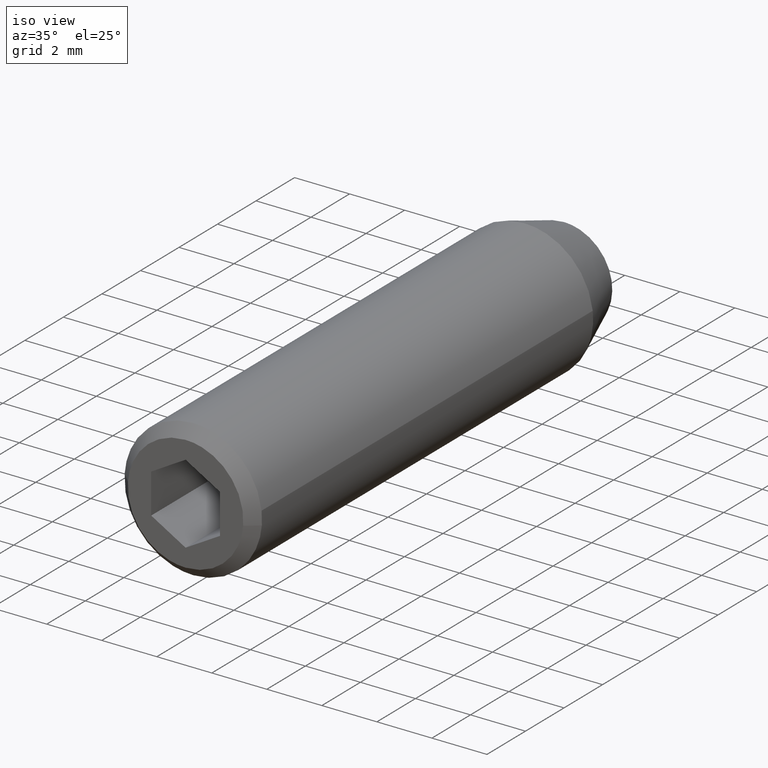
[diagram: clean part render]
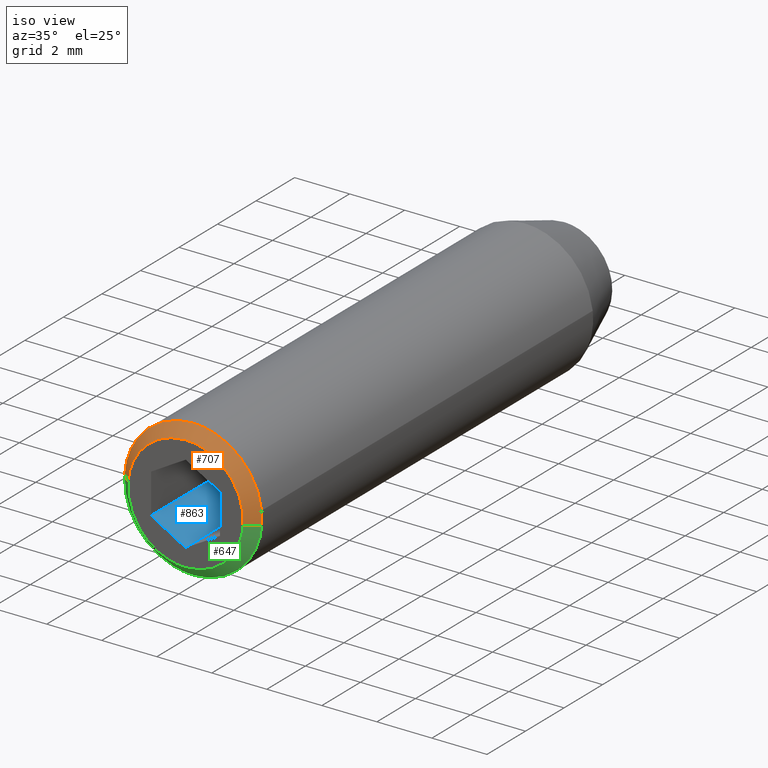
[diagram: same view with three faces highlighted in distinct colors, each labeled with its STEP entity id]
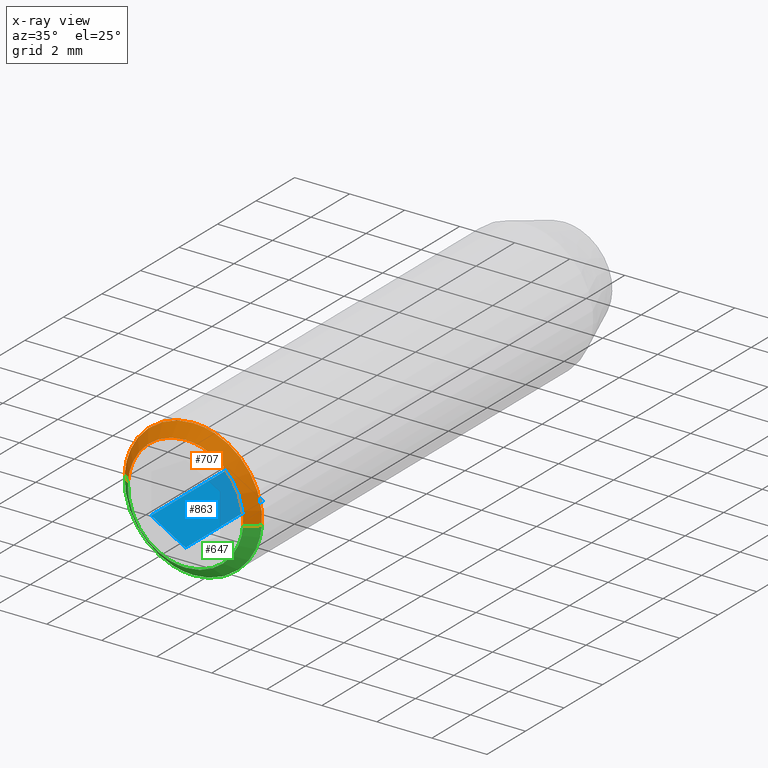
[diagram: x-ray of the same camera — body ghosted, the three highlighted faces saturated]
A machine part, iso view with three faces highlighted in distinct colors.
The next image is the same camera in x-ray (body ghosted, the three faces saturated) — at least one of them is partly hidden behind the body in this view.
Their STEP definitions:

[orange] entity #707 — the highlighted face is a freeform B-spline surface patch.
#453=CARTESIAN_POINT('',(2.483672983576886,-19.250000000000000,0.285251661958853));
#454=VERTEX_POINT('',#453);
#455=CARTESIAN_POINT('',(0.0,-19.250000000000000,2.500000000000000));
#456=VERTEX_POINT('',#455);
#457=CARTESIAN_POINT('',(2.483672983576886,-19.250000000000004,0.285251661958853));
#458=CARTESIAN_POINT('',(2.229307514102217,-19.249999999999993,2.499999999999999));
#459=CARTESIAN_POINT('',(0.0,-19.250000000000000,2.500000000000000));
#467=(BOUNDED_CURVE()B_SPLINE_CURVE(2,(#457,#458,#459),.UNSPECIFIED.,.F.,.U.)B_SPLINE_CURVE_WITH_KNOTS((3,3),(0.269767755891321,0.500000000000000),.UNSPECIFIED.)CURVE()GEOMETRIC_REPRESENTATION_ITEM()RATIONAL_B_SPLINE_CURVE((0.957343736431644,0.730266147793458,1.0))REPRESENTATION_ITEM(''));
#468=EDGE_CURVE('',#454,#456,#467,.T.);
#477=CARTESIAN_POINT('',(-2.493815165195101,-19.249999999996600,0.174384544104496));
#478=VERTEX_POINT('',#477);
#484=CARTESIAN_POINT('',(0.0,-19.250000000000000,2.500000000000000));
#485=CARTESIAN_POINT('',(-2.331240235093511,-19.249999999998305,2.499996679859113));
#486=CARTESIAN_POINT('',(-2.493815165195101,-19.249999999996597,0.174384544104496));
#494=(BOUNDED_CURVE()B_SPLINE_CURVE(2,(#484,#485,#486),.UNSPECIFIED.,.F.,.U.)B_SPLINE_CURVE_WITH_KNOTS((3,3),(0.500000000000000,0.737829682995177),.UNSPECIFIED.)CURVE()GEOMETRIC_REPRESENTATION_ITEM()RATIONAL_B_SPLINE_CURVE((1.0,0.721365194472639,0.972871408705238))REPRESENTATION_ITEM(''));
#495=EDGE_CURVE('',#456,#478,#494,.T.);
#526=CARTESIAN_POINT('',(2.492293334335535,-19.249999999993200,-0.196147739371851));
#527=VERTEX_POINT('',#526);
#528=CARTESIAN_POINT('',(2.492293334335535,-19.249999999993197,-0.196147739371851));
#529=CARTESIAN_POINT('',(2.500000000000000,-19.250000000000004,-0.098225267571118));
#530=CARTESIAN_POINT('',(2.500000000000000,-19.250000000000000,-5.143347E-016));
#531=CARTESIAN_POINT('',(2.500000000000000,-19.250000000000000,0.143093087672248));
#532=CARTESIAN_POINT('',(2.483672983576886,-19.249999999999993,0.285251661958853));
#540=(BOUNDED_CURVE()B_SPLINE_CURVE(2,(#528,#529,#530,#531,#532),.UNSPECIFIED.,.F.,.U.)B_SPLINE_CURVE_WITH_KNOTS((3,2,3),(0.236331300625654,0.250000000000000,0.269767755891321),.UNSPECIFIED.)CURVE()GEOMETRIC_REPRESENTATION_ITEM()RATIONAL_B_SPLINE_CURVE((0.969723356156972,0.983986122573018,1.0,0.976840633393090,0.957343736431644))REPRESENTATION_ITEM(''));
#541=EDGE_CURVE('',#527,#454,#540,.T.);
#600=CARTESIAN_POINT('',(2.093526400839647,-19.649999999999810,-0.164764101029995));
#601=VERTEX_POINT('',#600);
#602=CARTESIAN_POINT('',(2.093526400839647,-19.649999999999810,-0.164764101029995));
#603=CARTESIAN_POINT('',(2.492293334335535,-19.249999999993200,-0.196147739371851));
#604=QUASI_UNIFORM_CURVE('',1,(#602,#603),.UNSPECIFIED.,.F.,.U.);
#605=EDGE_CURVE('',#601,#527,#604,.T.);
#622=CARTESIAN_POINT('',(-2.093526400839646,-19.649999999999810,0.164764101029993));
#623=VERTEX_POINT('',#622);
#639=CARTESIAN_POINT('',(-2.093526400839646,-19.649999999999810,0.164764101029993));
#640=CARTESIAN_POINT('',(-2.493815165195101,-19.249999999996600,0.174384544104496));
#641=QUASI_UNIFORM_CURVE('',1,(#639,#640),.UNSPECIFIED.,.F.,.U.);
#642=EDGE_CURVE('',#623,#478,#641,.T.);
#648=CARTESIAN_POINT('',(-2.087279053478178,-19.660000000000011,0.116689227228448));
#649=CARTESIAN_POINT('',(-2.085426929362565,-19.660000000000007,0.140222695438218));
#650=CARTESIAN_POINT('',(-1.919577717431037,-19.660000000000007,2.247536737573431));
#651=CARTESIAN_POINT('',(0.163979510071197,-19.660000000000011,2.083557227502234));
#652=CARTESIAN_POINT('',(2.247536737573431,-19.660000000000007,1.919577717431037));
#653=CARTESIAN_POINT('',(2.082397546963724,-19.660000000000007,-0.178714648422078));
#654=CARTESIAN_POINT('',(2.081244640829600,-19.660000000000011,-0.193363709803842));
#655=CARTESIAN_POINT('',(-2.506981934925175,-19.239750000000004,0.140152695047948));
#656=CARTESIAN_POINT('',(-2.504757392072918,-19.239749999999994,0.168418191973105));
#657=CARTESIAN_POINT('',(-2.305559791952765,-19.239750000000004,2.699463682054415));
#658=CARTESIAN_POINT('',(0.196951945050825,-19.239750000000001,2.502511737003589));
#659=CARTESIAN_POINT('',(2.699463682054415,-19.239750000000004,2.305559791952765));
#660=CARTESIAN_POINT('',(2.501118871897467,-19.239749999999997,-0.214649974259102));
#661=CARTESIAN_POINT('',(2.499734143369628,-19.239750000000004,-0.232244618437845));
#669=(BOUNDED_SURFACE()B_SPLINE_SURFACE(2,1,((#648,#655),(#649,#656),(#650,#657),(#651,#658),(#652,#659),(#653,#660),(#654,#661)),.UNSPECIFIED.,.F.,.F.,.U.)B_SPLINE_SURFACE_WITH_KNOTS((3,1,2,1,3),(2,2),(0.0,0.067383728164919,4.226502107953176,8.385620487741434,8.427339991789015),(0.0,1.0),.UNSPECIFIED.)GEOMETRIC_REPRESENTATION_ITEM()RATIONAL_B_SPLINE_SURFACE(((1.009490586819449,1.009490586819449),(1.004745293409725,1.004745293409725),(0.707106781186548,0.707106781186548),(1.0,1.0),(0.707106781186548,0.707106781186548),(1.002937968750103,1.002937968750103),(1.005875937500206,1.005875937500206)))REPRESENTATION_ITEM('')SURFACE());
#670=ORIENTED_EDGE('',*,*,#541,.T.);
#671=ORIENTED_EDGE('',*,*,#468,.T.);
#672=ORIENTED_EDGE('',*,*,#495,.T.);
#673=ORIENTED_EDGE('',*,*,#642,.F.);
#674=CARTESIAN_POINT('',(0.0,-19.649999999999999,2.100000000000000));
#675=VERTEX_POINT('',#674);
#676=CARTESIAN_POINT('',(0.0,-19.649999999999999,2.100000000000000));
#677=CARTESIAN_POINT('',(-1.941220032479427,-19.650000000000002,2.099999999999999));
#678=CARTESIAN_POINT('',(-2.093526400839646,-19.649999999999810,0.164764101029993));
#686=(BOUNDED_CURVE()B_SPLINE_CURVE(2,(#676,#677,#678),.UNSPECIFIED.,.F.,.U.)B_SPLINE_CURVE_WITH_KNOTS((3,3),(0.500000000000000,0.736331300632520),.UNSPECIFIED.)CURVE()GEOMETRIC_REPRESENTATION_ITEM()RATIONAL_B_SPLINE_CURVE((1.0,0.723120658605486,0.969723356171299))REPRESENTATION_ITEM(''));
#687=EDGE_CURVE('',#675,#623,#686,.T.);
#688=ORIENTED_EDGE('',*,*,#687,.F.);
#689=CARTESIAN_POINT('',(2.093526400839646,-19.649999999999810,-0.164764101029995));
#690=CARTESIAN_POINT('',(2.100000000000000,-19.650000000000006,-0.082509224717618));
#691=CARTESIAN_POINT('',(2.100000000000000,-19.649999999999999,-5.143347E-016));
#692=CARTESIAN_POINT('',(2.100000000000000,-19.649999999999999,2.100000000000000));
#693=CARTESIAN_POINT('',(0.0,-19.649999999999999,2.100000000000000));
#701=(BOUNDED_CURVE()B_SPLINE_CURVE(2,(#689,#690,#691,#692,#693),.UNSPECIFIED.,.F.,.U.)B_SPLINE_CURVE_WITH_KNOTS((3,2,3),(0.236331300632521,0.250000000000000,0.500000000000000),.UNSPECIFIED.)CURVE()GEOMETRIC_REPRESENTATION_ITEM()RATIONAL_B_SPLINE_CURVE((0.969723356171301,0.983986122581062,1.0,0.707106781186548,1.0))REPRESENTATION_ITEM(''));
#702=EDGE_CURVE('',#601,#675,#701,.T.);
#703=ORIENTED_EDGE('',*,*,#702,.F.);
#704=ORIENTED_EDGE('',*,*,#605,.T.);
#705=EDGE_LOOP('',(#670,#671,#672,#673,#688,#703,#704));
#706=FACE_OUTER_BOUND('',#705,.T.);
#707=ADVANCED_FACE('',(#706),#669,.T.);

[blue] entity #863 — the highlighted face is a freeform B-spline surface patch.
#734=CARTESIAN_POINT('',(-1.250000000000000,-15.650000000000000,-0.721688000000000));
#735=VERTEX_POINT('',#734);
#741=CARTESIAN_POINT('',(0.0,-15.650000000000000,-1.443376000000000));
#742=VERTEX_POINT('',#741);
#743=CARTESIAN_POINT('',(-1.250000000000000,-15.650000000000000,-0.721688000000000));
#744=CARTESIAN_POINT('',(0.0,-15.650000000000000,-1.443376000000000));
#745=QUASI_UNIFORM_CURVE('',1,(#743,#744),.UNSPECIFIED.,.F.,.U.);
#746=EDGE_CURVE('',#735,#742,#745,.T.);
#825=CARTESIAN_POINT('',(0.0,-19.649999999999999,-1.443376000000000));
#826=VERTEX_POINT('',#825);
#834=CARTESIAN_POINT('',(0.0,-15.650000000000000,-1.443376000000000));
#835=CARTESIAN_POINT('',(0.0,-19.649999999999999,-1.443376000000000));
#836=QUASI_UNIFORM_CURVE('',1,(#834,#835),.UNSPECIFIED.,.F.,.U.);
#837=EDGE_CURVE('',#742,#826,#836,.T.);
#842=CARTESIAN_POINT('',(0.062437474109046,-19.849799631046661,-1.479424300651847));
#843=CARTESIAN_POINT('',(-1.312437529988401,-19.849799631046661,-0.685639667086185));
#844=CARTESIAN_POINT('',(0.062437474109046,-15.450199617934819,-1.479424300651847));
#845=CARTESIAN_POINT('',(-1.312437529988401,-15.450199617934819,-0.685639667086185));
#846=B_SPLINE_SURFACE_WITH_KNOTS('',1,1,((#842,#844),(#843,#845)),.UNSPECIFIED.,.F.,.F.,.U.,(2,2),(2,2),(0.041708350593969,0.958291686658934),(0.0,4.399600013111835),.UNSPECIFIED.);
#847=CARTESIAN_POINT('',(-1.250000000000000,-19.649999999999999,-0.721688000000000));
#848=VERTEX_POINT('',#847);
#849=CARTESIAN_POINT('',(-1.250000000000000,-19.649999999999999,-0.721688000000000));
#850=CARTESIAN_POINT('',(0.0,-19.649999999999999,-1.443376000000000));
#851=QUASI_UNIFORM_CURVE('',1,(#849,#850),.UNSPECIFIED.,.F.,.U.);
#852=EDGE_CURVE('',#848,#826,#851,.T.);
#853=ORIENTED_EDGE('',*,*,#852,.T.);
#854=ORIENTED_EDGE('',*,*,#837,.F.);
#855=ORIENTED_EDGE('',*,*,#746,.F.);
#856=CARTESIAN_POINT('',(-1.250000000000000,-15.650000000000000,-0.721688000000000));
#857=CARTESIAN_POINT('',(-1.250000000000000,-19.649999999999999,-0.721688000000000));
#858=QUASI_UNIFORM_CURVE('',1,(#856,#857),.UNSPECIFIED.,.F.,.U.);
#859=EDGE_CURVE('',#735,#848,#858,.T.);
#860=ORIENTED_EDGE('',*,*,#859,.T.);
#861=EDGE_LOOP('',(#853,#854,#855,#860));
#862=FACE_OUTER_BOUND('',#861,.T.);
#863=ADVANCED_FACE('',(#862),#846,.F.);

[green] entity #647 — the highlighted face is a freeform B-spline surface patch.
#477=CARTESIAN_POINT('',(-2.493815165195101,-19.249999999996600,0.174384544104496));
#478=VERTEX_POINT('',#477);
#526=CARTESIAN_POINT('',(2.492293334335535,-19.249999999993200,-0.196147739371851));
#527=VERTEX_POINT('',#526);
#543=CARTESIAN_POINT('',(0.0,-19.250000000000000,-2.500000000000000));
#544=VERTEX_POINT('',#543);
#545=CARTESIAN_POINT('',(0.0,-19.250000000000000,-2.500000000000000));
#546=CARTESIAN_POINT('',(2.310976229049340,-19.249999999999996,-2.500000000000000));
#547=CARTESIAN_POINT('',(2.492293334335536,-19.249999999993193,-0.196147739371851));
#555=(BOUNDED_CURVE()B_SPLINE_CURVE(2,(#545,#546,#547),.UNSPECIFIED.,.F.,.U.)B_SPLINE_CURVE_WITH_KNOTS((3,3),(0.0,0.236331300625654),.UNSPECIFIED.)CURVE()GEOMETRIC_REPRESENTATION_ITEM()RATIONAL_B_SPLINE_CURVE((1.0,0.723120658613529,0.969723356156972))REPRESENTATION_ITEM(''));
#556=EDGE_CURVE('',#544,#527,#555,.T.);
#558=CARTESIAN_POINT('',(-2.493815165195101,-19.249999999996597,0.174384544104496));
#559=CARTESIAN_POINT('',(-2.499906585700300,-19.249999999996653,0.087295391578169));
#560=CARTESIAN_POINT('',(-2.499908243746339,-19.249999999996710,-0.000006416222350));
#561=CARTESIAN_POINT('',(-2.499955723972662,-19.249999999998415,-2.500003096081465));
#562=CARTESIAN_POINT('',(0.0,-19.250000000000000,-2.500000000000000));
#570=(BOUNDED_CURVE()B_SPLINE_CURVE(2,(#558,#559,#560,#561,#562),.UNSPECIFIED.,.F.,.U.)B_SPLINE_CURVE_WITH_KNOTS((3,2,3),(0.737829682995177,0.750000000000000,1.0),.UNSPECIFIED.)CURVE()GEOMETRIC_REPRESENTATION_ITEM()RATIONAL_B_SPLINE_CURVE((0.972871408705238,0.985741586713909,1.0,0.707106781186548,1.0))REPRESENTATION_ITEM(''));
#571=EDGE_CURVE('',#478,#544,#570,.T.);
#581=CARTESIAN_POINT('',(2.083557227502234,-19.660000000000011,-0.163979510071197));
#582=CARTESIAN_POINT('',(1.919577717431037,-19.660000000000007,-2.247536737573432));
#583=CARTESIAN_POINT('',(-0.163979510071197,-19.660000000000011,-2.083557227502235));
#584=CARTESIAN_POINT('',(-2.247536737573431,-19.660000000000007,-1.919577717431037));
#585=CARTESIAN_POINT('',(-2.083557227502234,-19.660000000000011,0.163979510071196));
#586=CARTESIAN_POINT('',(2.502511737003590,-19.239750000000001,-0.196951945050825));
#587=CARTESIAN_POINT('',(2.305559791952765,-19.239750000000004,-2.699463682054416));
#588=CARTESIAN_POINT('',(-0.196951945050825,-19.239750000000001,-2.502511737003590));
#589=CARTESIAN_POINT('',(-2.699463682054415,-19.239750000000004,-2.305559791952766));
#590=CARTESIAN_POINT('',(-2.502511737003590,-19.239750000000001,0.196951945050824));
#598=(BOUNDED_SURFACE()B_SPLINE_SURFACE(2,1,((#581,#586),(#582,#587),(#583,#588),(#584,#589),(#585,#590)),.UNSPECIFIED.,.F.,.F.,.U.)B_SPLINE_SURFACE_WITH_KNOTS((3,2,3),(2,2),(0.0,4.159118379788257,8.318236759576514),(0.0,1.0),.UNSPECIFIED.)GEOMETRIC_REPRESENTATION_ITEM()RATIONAL_B_SPLINE_SURFACE(((1.0,1.0),(0.707106781186548,0.707106781186548),(1.0,1.0),(0.707106781186548,0.707106781186548),(1.0,1.0)))REPRESENTATION_ITEM('')SURFACE());
#599=ORIENTED_EDGE('',*,*,#556,.T.);
#600=CARTESIAN_POINT('',(2.093526400839647,-19.649999999999810,-0.164764101029995));
#601=VERTEX_POINT('',#600);
#602=CARTESIAN_POINT('',(2.093526400839647,-19.649999999999810,-0.164764101029995));
#603=CARTESIAN_POINT('',(2.492293334335535,-19.249999999993200,-0.196147739371851));
#604=QUASI_UNIFORM_CURVE('',1,(#602,#603),.UNSPECIFIED.,.F.,.U.);
#605=EDGE_CURVE('',#601,#527,#604,.T.);
#606=ORIENTED_EDGE('',*,*,#605,.F.);
#607=CARTESIAN_POINT('',(0.0,-19.649999999999999,-2.100000000000000));
#608=VERTEX_POINT('',#607);
#609=CARTESIAN_POINT('',(0.0,-19.649999999999999,-2.100000000000000));
#610=CARTESIAN_POINT('',(1.941220032479438,-19.650000000000006,-2.100000000000000));
#611=CARTESIAN_POINT('',(2.093526400839647,-19.649999999999807,-0.164764101029995));
#619=(BOUNDED_CURVE()B_SPLINE_CURVE(2,(#609,#610,#611),.UNSPECIFIED.,.F.,.U.)B_SPLINE_CURVE_WITH_KNOTS((3,3),(0.0,0.236331300632521),.UNSPECIFIED.)CURVE()GEOMETRIC_REPRESENTATION_ITEM()RATIONAL_B_SPLINE_CURVE((1.0,0.723120658605485,0.969723356171302))REPRESENTATION_ITEM(''));
#620=EDGE_CURVE('',#608,#601,#619,.T.);
#621=ORIENTED_EDGE('',*,*,#620,.F.);
#622=CARTESIAN_POINT('',(-2.093526400839646,-19.649999999999810,0.164764101029993));
#623=VERTEX_POINT('',#622);
#624=CARTESIAN_POINT('',(-2.093526400839646,-19.649999999999807,0.164764101029993));
#625=CARTESIAN_POINT('',(-2.100000000000000,-19.650000000000006,0.082509224717616));
#626=CARTESIAN_POINT('',(-2.100000000000000,-19.649999999999999,-5.143347E-016));
#627=CARTESIAN_POINT('',(-2.100000000000000,-19.649999999999999,-2.100000000000000));
#628=CARTESIAN_POINT('',(0.0,-19.649999999999999,-2.100000000000000));
#636=(BOUNDED_CURVE()B_SPLINE_CURVE(2,(#624,#625,#626,#627,#628),.UNSPECIFIED.,.F.,.U.)B_SPLINE_CURVE_WITH_KNOTS((3,2,3),(0.736331300632521,0.750000000000000,1.0),.UNSPECIFIED.)CURVE()GEOMETRIC_REPRESENTATION_ITEM()RATIONAL_B_SPLINE_CURVE((0.969723356171302,0.983986122581062,1.0,0.707106781186548,1.0))REPRESENTATION_ITEM(''));
#637=EDGE_CURVE('',#623,#608,#636,.T.);
#638=ORIENTED_EDGE('',*,*,#637,.F.);
#639=CARTESIAN_POINT('',(-2.093526400839646,-19.649999999999810,0.164764101029993));
#640=CARTESIAN_POINT('',(-2.493815165195101,-19.249999999996600,0.174384544104496));
#641=QUASI_UNIFORM_CURVE('',1,(#639,#640),.UNSPECIFIED.,.F.,.U.);
#642=EDGE_CURVE('',#623,#478,#641,.T.);
#643=ORIENTED_EDGE('',*,*,#642,.T.);
#644=ORIENTED_EDGE('',*,*,#571,.T.);
#645=EDGE_LOOP('',(#599,#606,#621,#638,#643,#644));
#646=FACE_OUTER_BOUND('',#645,.T.);
#647=ADVANCED_FACE('',(#646),#598,.T.);